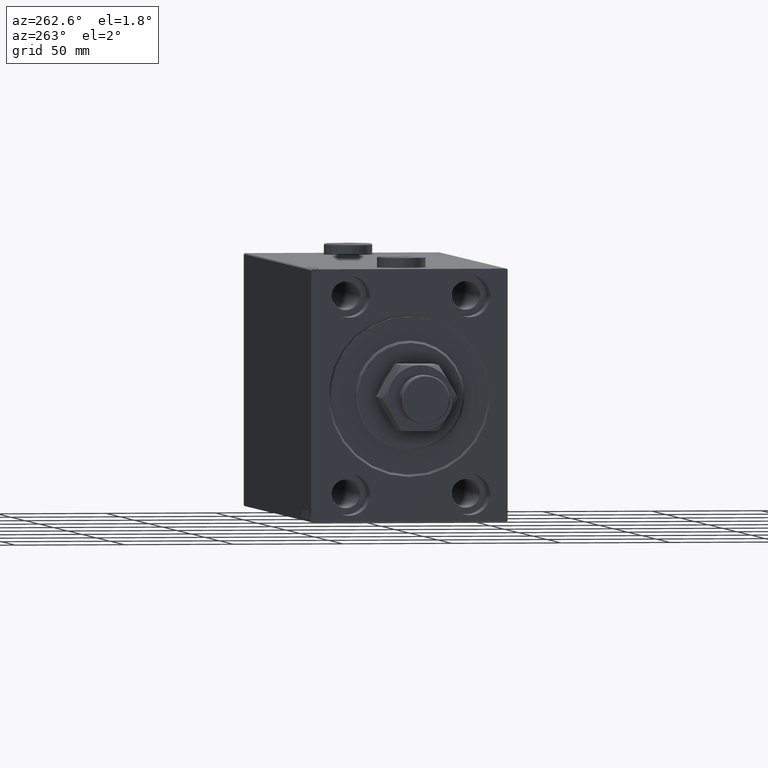
[diagram: clean part render]
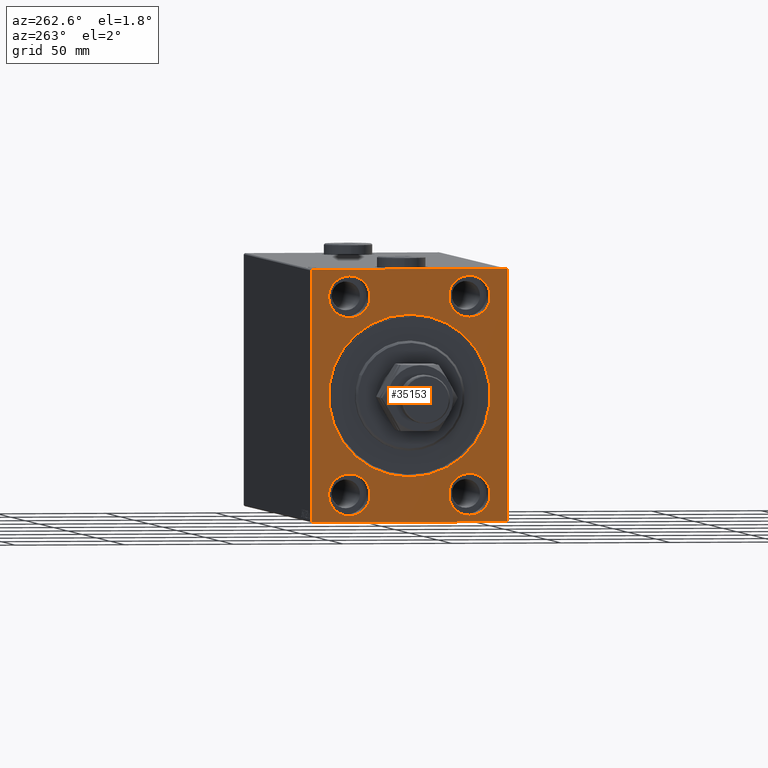
[diagram: same view with one face highlighted and labeled with its STEP entity id]
A machine part, auxiliary view. The second image highlights one B-rep face of the part: STEP entity #35153.
In plain terms, the highlighted planar face has unit normal (1, 0, 0).
Its self-contained STEP definition (entity closure, byte-faithful):
#58 = AXIS2_PLACEMENT_3D ( 'NONE', #39689, #19009, #22101 ) ;
#176 = CIRCLE ( 'NONE', #12238, 9.500000000000001776 ) ;
#427 = ORIENTED_EDGE ( 'NONE', *, *, #26219, .F. ) ;
#767 = VERTEX_POINT ( 'NONE', #1988 ) ;
#1549 = VERTEX_POINT ( 'NONE', #21272 ) ;
#1768 = VERTEX_POINT ( 'NONE', #25715 ) ;
#1988 = CARTESIAN_POINT ( 'NONE',  ( 0.000000000000000000, -44.49999999999994316, 57.49999999999999289 ) ) ;
#2030 = AXIS2_PLACEMENT_3D ( 'NONE', #2248, #16739, #42380 ) ;
#2248 = CARTESIAN_POINT ( 'NONE',  ( 0.000000000000000000, 27.50000000000001066, 45.00000000000000711 ) ) ;
#2540 = CARTESIAN_POINT ( 'NONE',  ( 0.000000000000000000, -45.00000000000000000, -57.50000000000000711 ) ) ;
#2714 = DIRECTION ( 'NONE',  ( 0.000000000000000000, 0.000000000000000000, -1.000000000000000000 ) ) ;
#3011 = LINE ( 'NONE', #2540, #6771 ) ;
#3206 = VERTEX_POINT ( 'NONE', #19143 ) ;
#3433 = CARTESIAN_POINT ( 'NONE',  ( 0.000000000000000000, 27.49999999999998934, -54.49999999999998579 ) ) ;
#3660 = LINE ( 'NONE', #32629, #34061 ) ;
#3785 = ORIENTED_EDGE ( 'NONE', *, *, #10809, .F. ) ;
#3786 = LINE ( 'NONE', #11618, #19763 ) ;
#3818 = AXIS2_PLACEMENT_3D ( 'NONE', #14789, #25962, #22166 ) ;
#3863 = VERTEX_POINT ( 'NONE', #38180 ) ;
#4091 = EDGE_LOOP ( 'NONE', ( #427, #12296 ) ) ;
#4281 = VERTEX_POINT ( 'NONE', #13186 ) ;
#4296 = ORIENTED_EDGE ( 'NONE', *, *, #46753, .F. ) ;
#4542 = ORIENTED_EDGE ( 'NONE', *, *, #36153, .T. ) ;
#4632 = CARTESIAN_POINT ( 'NONE',  ( 0.000000000000000000, 45.00000000000000000, 57.00000000000003553 ) ) ;
#4857 = CARTESIAN_POINT ( 'NONE',  ( 0.000000000000000000, 44.50000000000005684, 57.50000000000000711 ) ) ;
#4886 = EDGE_CURVE ( 'NONE', #30328, #767, #25498, .T. ) ;
#5545 = VERTEX_POINT ( 'NONE', #10745 ) ;
#6098 = DIRECTION ( 'NONE',  ( -0.000000000000000000, 0.7071067811865672237, 0.7071067811865279218 ) ) ;
#6530 = CARTESIAN_POINT ( 'NONE',  ( 0.000000000000000000, 44.50000000000005684, 57.50000000000000711 ) ) ;
#6596 = CIRCLE ( 'NONE', #2030, 9.500000000000001776 ) ;
#6771 = VECTOR ( 'NONE', #17027, 1000.000000000000000 ) ;
#7297 = DIRECTION ( 'NONE',  ( 0.000000000000000000, 0.000000000000000000, -1.000000000000000000 ) ) ;
#7680 = VERTEX_POINT ( 'NONE', #35123 ) ;
#7775 = CARTESIAN_POINT ( 'NONE',  ( 0.000000000000000000, 0.000000000000000000, 0.000000000000000000 ) ) ;
#7859 = CARTESIAN_POINT ( 'NONE',  ( 0.000000000000000000, -27.50000000000000000, -44.99999999999998579 ) ) ;
#8102 = DIRECTION ( 'NONE',  ( 0.000000000000000000, 0.000000000000000000, 1.000000000000000000 ) ) ;
#8325 = EDGE_LOOP ( 'NONE', ( #38753, #23274 ) ) ;
#8344 = CARTESIAN_POINT ( 'NONE',  ( 0.000000000000000000, -27.49999999999998934, 45.00000000000000711 ) ) ;
#8400 = EDGE_CURVE ( 'NONE', #7680, #31153, #23985, .T. ) ;
#9215 = LINE ( 'NONE', #20355, #44534 ) ;
#9811 = CARTESIAN_POINT ( 'NONE',  ( 0.000000000000000000, 27.49999999999998934, -35.49999999999998579 ) ) ;
#10279 = CARTESIAN_POINT ( 'NONE',  ( 0.000000000000000000, -27.50000000000000000, -44.99999999999998579 ) ) ;
#10421 = EDGE_CURVE ( 'NONE', #35459, #767, #9215, .T. ) ;
#10735 = VERTEX_POINT ( 'NONE', #11545 ) ;
#10745 = CARTESIAN_POINT ( 'NONE',  ( 0.000000000000000000, -27.49999999999998934, 54.50000000000000711 ) ) ;
#10809 = EDGE_CURVE ( 'NONE', #39976, #1549, #6596, .T. ) ;
#11334 = EDGE_LOOP ( 'NONE', ( #3785, #33180 ) ) ;
#11545 = CARTESIAN_POINT ( 'NONE',  ( 0.000000000000000000, 4.531193156845207581E-15, -37.00000000000000711 ) ) ;
#11618 = CARTESIAN_POINT ( 'NONE',  ( 0.000000000000000000, -44.50000000000005684, -57.50000000000000711 ) ) ;
#11651 = CARTESIAN_POINT ( 'NONE',  ( 0.000000000000000000, -27.49999999999998934, 45.00000000000000711 ) ) ;
#12238 = AXIS2_PLACEMENT_3D ( 'NONE', #7859, #15449, #29923 ) ;
#12296 = ORIENTED_EDGE ( 'NONE', *, *, #45110, .F. ) ;
#13186 = CARTESIAN_POINT ( 'NONE',  ( 0.000000000000000000, -27.50000000000000000, -35.49999999999998579 ) ) ;
#13662 = LINE ( 'NONE', #6530, #15802 ) ;
#13807 = ORIENTED_EDGE ( 'NONE', *, *, #37201, .T. ) ;
#13977 = CARTESIAN_POINT ( 'NONE',  ( 0.000000000000000000, -44.50000000000005684, -57.50000000000000711 ) ) ;
#14110 = FACE_BOUND ( 'NONE', #8325, .T. ) ;
#14310 = ORIENTED_EDGE ( 'NONE', *, *, #14567, .F. ) ;
#14567 = EDGE_CURVE ( 'NONE', #5545, #3863, #27923, .T. ) ;
#14789 = CARTESIAN_POINT ( 'NONE',  ( 0.000000000000000000, 27.49999999999998934, -44.99999999999998579 ) ) ;
#15138 = AXIS2_PLACEMENT_3D ( 'NONE', #7775, #39835, #7297 ) ;
#15255 = CIRCLE ( 'NONE', #58, 9.500000000000001776 ) ;
#15449 = DIRECTION ( 'NONE',  ( -1.000000000000000000, 0.000000000000000000, 0.000000000000000000 ) ) ;
#15802 = VECTOR ( 'NONE', #34346, 1000.000000000000114 ) ;
#15873 = DIRECTION ( 'NONE',  ( 1.000000000000000000, 0.000000000000000000, 0.000000000000000000 ) ) ;
#16583 = ORIENTED_EDGE ( 'NONE', *, *, #4886, .F. ) ;
#16632 = CARTESIAN_POINT ( 'NONE',  ( 0.000000000000000000, 45.00000000000001421, -57.50000000000000711 ) ) ;
#16739 = DIRECTION ( 'NONE',  ( -1.000000000000000000, 0.000000000000000000, 0.000000000000000000 ) ) ;
#16928 = EDGE_LOOP ( 'NONE', ( #14310, #36447 ) ) ;
#17027 = DIRECTION ( 'NONE',  ( 0.000000000000000000, 1.000000000000000000, 0.000000000000000000 ) ) ;
#17042 = EDGE_CURVE ( 'NONE', #38746, #1768, #3011, .T. ) ;
#17200 = CARTESIAN_POINT ( 'NONE',  ( 0.000000000000000000, 0.000000000000000000, 0.000000000000000000 ) ) ;
#17635 = DIRECTION ( 'NONE',  ( -1.000000000000000000, 0.000000000000000000, 0.000000000000000000 ) ) ;
#18146 = DIRECTION ( 'NONE',  ( 0.000000000000000000, -0.7071067811865474617, -0.7071067811865474617 ) ) ;
#18273 = DIRECTION ( 'NONE',  ( -0.000000000000000000, -0.7071067811865474617, 0.7071067811865474617 ) ) ;
#19009 = DIRECTION ( 'NONE',  ( -1.000000000000000000, 0.000000000000000000, 0.000000000000000000 ) ) ;
#19143 = CARTESIAN_POINT ( 'NONE',  ( 0.000000000000000000, 0.000000000000000000, 37.00000000000000711 ) ) ;
#19398 = ORIENTED_EDGE ( 'NONE', *, *, #17042, .F. ) ;
#19438 = CARTESIAN_POINT ( 'NONE',  ( 0.000000000000000000, 0.000000000000000000, 0.000000000000000000 ) ) ;
#19763 = VECTOR ( 'NONE', #18273, 1000.000000000000114 ) ;
#20355 = CARTESIAN_POINT ( 'NONE',  ( 0.000000000000000000, -45.00000000000000000, 56.99999999999999289 ) ) ;
#20399 = AXIS2_PLACEMENT_3D ( 'NONE', #17200, #35473, #2714 ) ;
#20769 = FACE_BOUND ( 'NONE', #4091, .T. ) ;
#20777 = EDGE_CURVE ( 'NONE', #1549, #39976, #15255, .T. ) ;
#20942 = CARTESIAN_POINT ( 'NONE',  ( 0.000000000000000000, -45.00000000000000000, 56.99999999999999289 ) ) ;
#21272 = CARTESIAN_POINT ( 'NONE',  ( 0.000000000000000000, 27.50000000000001066, 35.50000000000000711 ) ) ;
#21274 = CIRCLE ( 'NONE', #3818, 9.500000000000001776 ) ;
#22101 = DIRECTION ( 'NONE',  ( 0.000000000000000000, 0.000000000000000000, 1.000000000000000000 ) ) ;
#22166 = DIRECTION ( 'NONE',  ( 0.000000000000000000, 0.000000000000000000, 1.000000000000000000 ) ) ;
#22749 = CARTESIAN_POINT ( 'NONE',  ( 0.000000000000000000, -45.00000000000000000, 57.49999999999999289 ) ) ;
#23211 = EDGE_CURVE ( 'NONE', #38746, #26947, #3786, .T. ) ;
#23274 = ORIENTED_EDGE ( 'NONE', *, *, #39355, .F. ) ;
#23309 = ORIENTED_EDGE ( 'NONE', *, *, #30240, .T. ) ;
#23985 = LINE ( 'NONE', #16632, #33931 ) ;
#25053 = ORIENTED_EDGE ( 'NONE', *, *, #35260, .T. ) ;
#25498 = LINE ( 'NONE', #26202, #45252 ) ;
#25682 = ORIENTED_EDGE ( 'NONE', *, *, #8400, .F. ) ;
#25715 = CARTESIAN_POINT ( 'NONE',  ( 0.000000000000000000, 44.50000000000004263, -57.50000000000000711 ) ) ;
#25864 = VERTEX_POINT ( 'NONE', #3433 ) ;
#25962 = DIRECTION ( 'NONE',  ( -1.000000000000000000, 0.000000000000000000, 0.000000000000000000 ) ) ;
#26140 = DIRECTION ( 'NONE',  ( -1.000000000000000000, 0.000000000000000000, 0.000000000000000000 ) ) ;
#26202 = CARTESIAN_POINT ( 'NONE',  ( 0.000000000000000000, 45.00000000000000000, 57.50000000000000711 ) ) ;
#26219 = EDGE_CURVE ( 'NONE', #4281, #30989, #34233, .T. ) ;
#26947 = VERTEX_POINT ( 'NONE', #39134 ) ;
#27923 = CIRCLE ( 'NONE', #40822, 9.500000000000001776 ) ;
#27977 = AXIS2_PLACEMENT_3D ( 'NONE', #19438, #15873, #33677 ) ;
#28936 = CARTESIAN_POINT ( 'NONE',  ( 0.000000000000000000, 27.50000000000001066, 54.50000000000000711 ) ) ;
#29380 = LINE ( 'NONE', #22749, #41863 ) ;
#29848 = EDGE_LOOP ( 'NONE', ( #4542, #13807 ) ) ;
#29923 = DIRECTION ( 'NONE',  ( 0.000000000000000000, 0.000000000000000000, 1.000000000000000000 ) ) ;
#30240 = EDGE_CURVE ( 'NONE', #30328, #31153, #13662, .T. ) ;
#30328 = VERTEX_POINT ( 'NONE', #4857 ) ;
#30989 = VERTEX_POINT ( 'NONE', #35270 ) ;
#31153 = VERTEX_POINT ( 'NONE', #4632 ) ;
#31182 = AXIS2_PLACEMENT_3D ( 'NONE', #10279, #17635, #35432 ) ;
#31978 = ORIENTED_EDGE ( 'NONE', *, *, #10421, .T. ) ;
#32154 = PLANE ( 'NONE',  #20399 ) ;
#32629 = CARTESIAN_POINT ( 'NONE',  ( 0.000000000000000000, 45.00000000000001421, -57.00000000000006395 ) ) ;
#32727 = DIRECTION ( 'NONE',  ( 0.000000000000000000, 0.000000000000000000, -1.000000000000000000 ) ) ;
#32783 = DIRECTION ( 'NONE',  ( -1.000000000000000000, 0.000000000000000000, 0.000000000000000000 ) ) ;
#33180 = ORIENTED_EDGE ( 'NONE', *, *, #20777, .F. ) ;
#33198 = EDGE_CURVE ( 'NONE', #3863, #5545, #37004, .T. ) ;
#33251 = DIRECTION ( 'NONE',  ( 0.000000000000000000, 0.000000000000000000, 1.000000000000000000 ) ) ;
#33677 = DIRECTION ( 'NONE',  ( 0.000000000000000000, 0.000000000000000000, -1.000000000000000000 ) ) ;
#33931 = VECTOR ( 'NONE', #34672, 1000.000000000000000 ) ;
#34061 = VECTOR ( 'NONE', #18146, 1000.000000000000114 ) ;
#34233 = CIRCLE ( 'NONE', #31182, 9.500000000000001776 ) ;
#34257 = AXIS2_PLACEMENT_3D ( 'NONE', #46226, #46691, #35500 ) ;
#34346 = DIRECTION ( 'NONE',  ( -0.000000000000000000, 0.7071067811865474617, -0.7071067811865474617 ) ) ;
#34672 = DIRECTION ( 'NONE',  ( 0.000000000000000000, -1.206764157201257045E-16, 1.000000000000000000 ) ) ;
#35000 = CIRCLE ( 'NONE', #34257, 9.500000000000001776 ) ;
#35123 = CARTESIAN_POINT ( 'NONE',  ( 0.000000000000000000, 45.00000000000001421, -57.00000000000006395 ) ) ;
#35153 = ADVANCED_FACE ( 'NONE', ( #39055, #14110, #42385, #35715, #20769, #35239 ), #32154, .F. ) ;
#35239 = FACE_OUTER_BOUND ( 'NONE', #43343, .T. ) ;
#35260 = EDGE_CURVE ( 'NONE', #7680, #1768, #3660, .T. ) ;
#35270 = CARTESIAN_POINT ( 'NONE',  ( 0.000000000000000000, -27.50000000000000000, -54.49999999999998579 ) ) ;
#35432 = DIRECTION ( 'NONE',  ( 0.000000000000000000, 0.000000000000000000, 1.000000000000000000 ) ) ;
#35459 = VERTEX_POINT ( 'NONE', #20942 ) ;
#35473 = DIRECTION ( 'NONE',  ( 1.000000000000000000, 0.000000000000000000, 0.000000000000000000 ) ) ;
#35500 = DIRECTION ( 'NONE',  ( 0.000000000000000000, 0.000000000000000000, 1.000000000000000000 ) ) ;
#35605 = CIRCLE ( 'NONE', #15138, 37.00000000000000711 ) ;
#35715 = FACE_BOUND ( 'NONE', #11334, .T. ) ;
#36153 = EDGE_CURVE ( 'NONE', #3206, #10735, #36317, .T. ) ;
#36317 = CIRCLE ( 'NONE', #27977, 37.00000000000000711 ) ;
#36447 = ORIENTED_EDGE ( 'NONE', *, *, #33198, .F. ) ;
#36654 = DIRECTION ( 'NONE',  ( 0.000000000000000000, -1.000000000000000000, -1.541976423090495387E-16 ) ) ;
#37004 = CIRCLE ( 'NONE', #40812, 9.500000000000001776 ) ;
#37201 = EDGE_CURVE ( 'NONE', #10735, #3206, #35605, .T. ) ;
#38180 = CARTESIAN_POINT ( 'NONE',  ( 0.000000000000000000, -27.49999999999998934, 35.50000000000000711 ) ) ;
#38544 = ORIENTED_EDGE ( 'NONE', *, *, #23211, .T. ) ;
#38746 = VERTEX_POINT ( 'NONE', #13977 ) ;
#38753 = ORIENTED_EDGE ( 'NONE', *, *, #42810, .F. ) ;
#39055 = FACE_BOUND ( 'NONE', #29848, .T. ) ;
#39134 = CARTESIAN_POINT ( 'NONE',  ( 0.000000000000000000, -45.00000000000000000, -57.00000000000006395 ) ) ;
#39355 = EDGE_CURVE ( 'NONE', #25864, #42075, #21274, .T. ) ;
#39689 = CARTESIAN_POINT ( 'NONE',  ( 0.000000000000000000, 27.50000000000001066, 45.00000000000000711 ) ) ;
#39835 = DIRECTION ( 'NONE',  ( 1.000000000000000000, 0.000000000000000000, 0.000000000000000000 ) ) ;
#39976 = VERTEX_POINT ( 'NONE', #28936 ) ;
#40812 = AXIS2_PLACEMENT_3D ( 'NONE', #8344, #26140, #8102 ) ;
#40822 = AXIS2_PLACEMENT_3D ( 'NONE', #11651, #32783, #33251 ) ;
#41863 = VECTOR ( 'NONE', #32727, 1000.000000000000000 ) ;
#42075 = VERTEX_POINT ( 'NONE', #9811 ) ;
#42380 = DIRECTION ( 'NONE',  ( 0.000000000000000000, 0.000000000000000000, 1.000000000000000000 ) ) ;
#42385 = FACE_BOUND ( 'NONE', #16928, .T. ) ;
#42810 = EDGE_CURVE ( 'NONE', #42075, #25864, #35000, .T. ) ;
#43343 = EDGE_LOOP ( 'NONE', ( #4296, #31978, #16583, #23309, #25682, #25053, #19398, #38544 ) ) ;
#44534 = VECTOR ( 'NONE', #6098, 1000.000000000000000 ) ;
#45110 = EDGE_CURVE ( 'NONE', #30989, #4281, #176, .T. ) ;
#45252 = VECTOR ( 'NONE', #36654, 1000.000000000000000 ) ;
#46226 = CARTESIAN_POINT ( 'NONE',  ( 0.000000000000000000, 27.49999999999998934, -44.99999999999998579 ) ) ;
#46691 = DIRECTION ( 'NONE',  ( -1.000000000000000000, 0.000000000000000000, 0.000000000000000000 ) ) ;
#46753 = EDGE_CURVE ( 'NONE', #35459, #26947, #29380, .T. ) ;